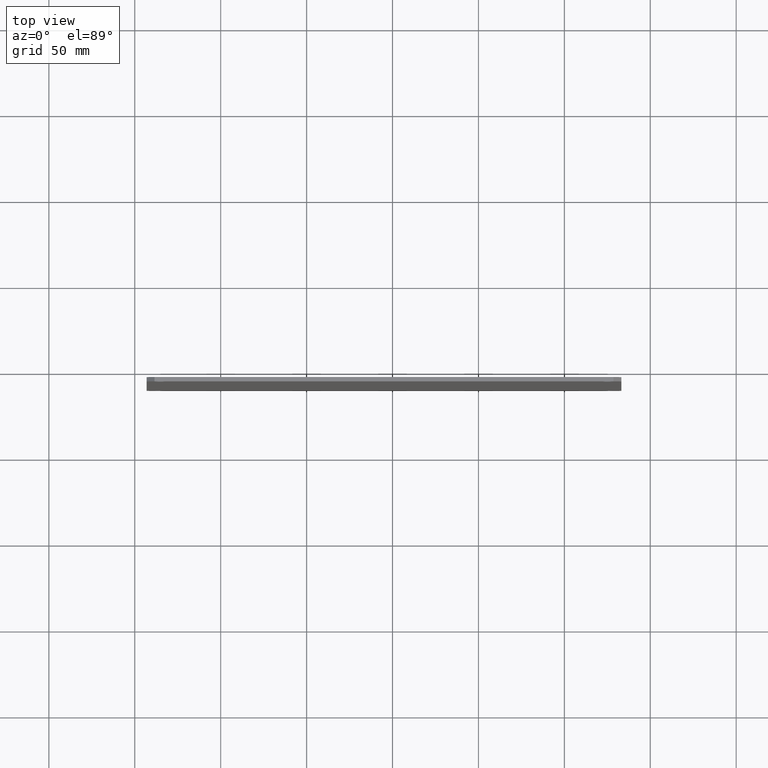
[diagram: clean part render]
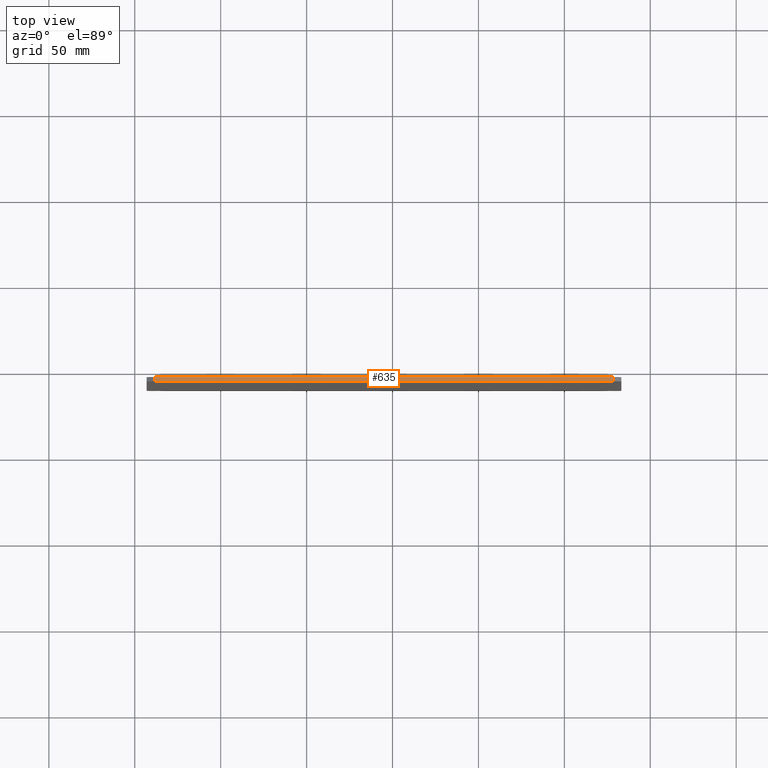
[diagram: same view with one face highlighted and labeled with its STEP entity id]
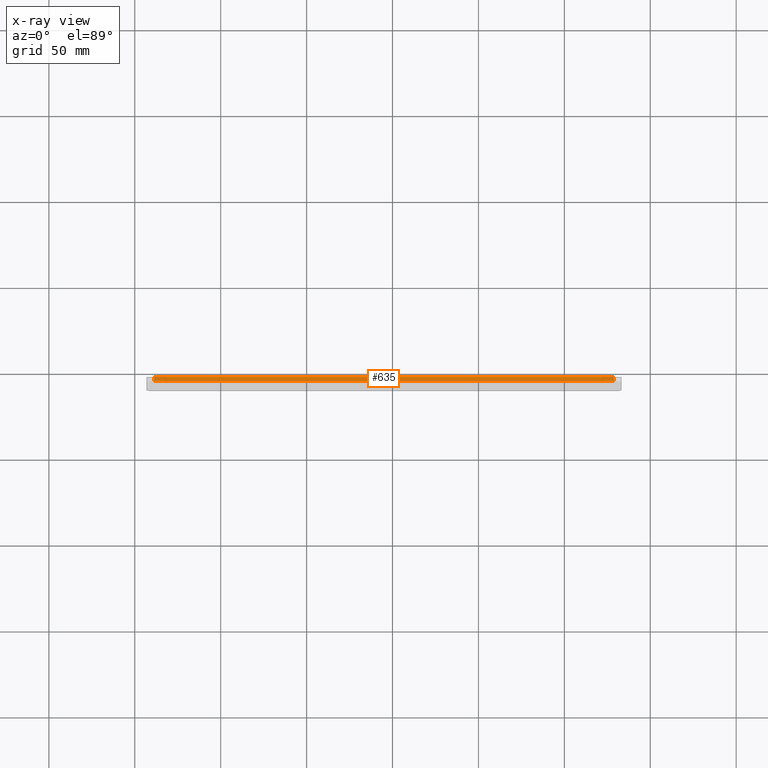
[diagram: x-ray of the same camera — body ghosted, the highlighted face saturated]
A machine part, top view. The second image highlights one B-rep face of the part: STEP entity #635.
The next image is the same camera in x-ray: the body ghosted, the highlighted face saturated — about 0% of this face is hidden behind the body in this view.
In plain terms, the highlighted planar face has unit normal (0, 0, 1).
Its self-contained STEP definition (entity closure, byte-faithful):
#26 = LINE ( 'NONE', #84, #561 ) ;
#39 = FACE_OUTER_BOUND ( 'NONE', #91, .T. ) ;
#60 = VECTOR ( 'NONE', #127, 39.37007874015748100 ) ;
#68 = ORIENTED_EDGE ( 'NONE', *, *, #668, .F. ) ;
#78 = VECTOR ( 'NONE', #506, 39.37007874015748100 ) ;
#84 = CARTESIAN_POINT ( 'NONE',  ( -11.35814778627970700, -8.261220590614481600, 3.217902669980988100 ) ) ;
#91 = EDGE_LOOP ( 'NONE', ( #68, #471, #462, #571 ) ) ;
#127 = DIRECTION ( 'NONE',  ( 0.0000000000000000000, 1.000000000000000000, 0.0000000000000000000 ) ) ;
#143 = EDGE_CURVE ( 'NONE', #314, #562, #26, .T. ) ;
#145 = DIRECTION ( 'NONE',  ( 0.0000000000000000000, 0.0000000000000000000, 1.000000000000000000 ) ) ;
#147 = CARTESIAN_POINT ( 'NONE',  ( -0.8431477862797096500, -8.161220590614481900, 3.217902669980989000 ) ) ;
#149 = VECTOR ( 'NONE', #386, 39.37007874015748100 ) ;
#166 = CARTESIAN_POINT ( 'NONE',  ( -11.35814778627970700, -8.261220590614481600, 3.217902669980988100 ) ) ;
#215 = CARTESIAN_POINT ( 'NONE',  ( -0.8431477862797075500, -8.261220590614481600, 3.217902669980988100 ) ) ;
#217 = LINE ( 'NONE', #545, #78 ) ;
#226 = AXIS2_PLACEMENT_3D ( 'NONE', #642, #145, #596 ) ;
#235 = CARTESIAN_POINT ( 'NONE',  ( -11.53814778627970700, -8.161220590614481900, 3.217902669980988100 ) ) ;
#283 = EDGE_CURVE ( 'NONE', #428, #448, #332, .T. ) ;
#302 = CARTESIAN_POINT ( 'NONE',  ( -11.35814778627970700, -8.161220590614481900, 3.217902669980988100 ) ) ;
#314 = VERTEX_POINT ( 'NONE', #302 ) ;
#327 = CARTESIAN_POINT ( 'NONE',  ( -0.8431477862797118700, -8.261220590614481600, 3.217902669980989000 ) ) ;
#332 = LINE ( 'NONE', #215, #60 ) ;
#386 = DIRECTION ( 'NONE',  ( 1.000000000000000000, 0.0000000000000000000, 0.0000000000000000000 ) ) ;
#428 = VERTEX_POINT ( 'NONE', #327 ) ;
#444 = EDGE_CURVE ( 'NONE', #562, #428, #217, .T. ) ;
#448 = VERTEX_POINT ( 'NONE', #147 ) ;
#462 = ORIENTED_EDGE ( 'NONE', *, *, #444, .T. ) ;
#471 = ORIENTED_EDGE ( 'NONE', *, *, #143, .T. ) ;
#506 = DIRECTION ( 'NONE',  ( 1.000000000000000000, 0.0000000000000000000, 0.0000000000000000000 ) ) ;
#545 = CARTESIAN_POINT ( 'NONE',  ( -11.53814778627970700, -8.261220590614481600, 3.217902669980988100 ) ) ;
#561 = VECTOR ( 'NONE', #617, 39.37007874015748100 ) ;
#562 = VERTEX_POINT ( 'NONE', #166 ) ;
#571 = ORIENTED_EDGE ( 'NONE', *, *, #283, .T. ) ;
#590 = LINE ( 'NONE', #235, #149 ) ;
#596 = DIRECTION ( 'NONE',  ( 1.000000000000000000, 0.0000000000000000000, -0.0000000000000000000 ) ) ;
#617 = DIRECTION ( 'NONE',  ( 0.0000000000000000000, -1.000000000000000000, 0.0000000000000000000 ) ) ;
#635 = ADVANCED_FACE ( 'NONE', ( #39 ), #662, .T. ) ;
#642 = CARTESIAN_POINT ( 'NONE',  ( -11.53814778627970700, -8.261220590614481600, 3.217902669980988100 ) ) ;
#662 = PLANE ( 'NONE',  #226 ) ;
#668 = EDGE_CURVE ( 'NONE', #314, #448, #590, .T. ) ;